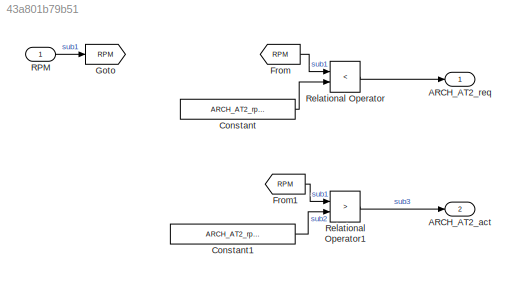
MODEL slx_43a801b79b51
KIND model
CONFIG AbsTol = auto
CONFIG EnableMultiTasking = off
CONFIG FixedStep = fixedStepSize
CONFIG MaxStep = auto
CONFIG MinStep = auto
CONFIG RelTol = 1e-3
CONFIG SampleTimeConstraint = Unconstrained
CONFIG Solver = FixedStepAuto
CONFIG SolverName = FixedStepAuto
CONFIG StartTime = 0.0
CONFIG StopTime = 10.0
BLOCK [Outport] ARCH_AT2_act
  IconDisplay = Port number
  OutDataTypeStr = boolean
  Port = 2
  PortDimensions = 1
  SamplingMode = Sample based
  SignalType = real
  VectorParamsAs1DForOutWhenUnconnected = off
BLOCK [Outport] ARCH_AT2_req
  IconDisplay = Port number
  OutDataTypeStr = boolean
  PortDimensions = 1
  SamplingMode = Sample based
  SignalType = real
  VectorParamsAs1DForOutWhenUnconnected = off
BLOCK [Constant] Constant
  Value = ARCH_AT2_rpmLimit
BLOCK [Constant] Constant1
  Value = ARCH_AT2_rpmLimitAct
BLOCK [From] From
  GotoTag = RPM
BLOCK [From] From1
  GotoTag = RPM
BLOCK [Goto] Goto
  GotoTag = RPM
BLOCK [Inport] RPM
  IconDisplay = Port number
BLOCK [RelationalOperator] Relational Operator
  InputSameDT = off
  Operator = <
  OutDataTypeStr = boolean
  Ports = [2, 1]
  RndMeth = Simplest
BLOCK [RelationalOperator] Relational Operator1
  InputSameDT = off
  Operator = >
  OutDataTypeStr = boolean
  Ports = [2, 1]
  RndMeth = Simplest
LINE Constant1:1 -> Relational Operator1:2
LINE Constant:1 -> Relational Operator:2
LINE From1:1 -> Relational Operator1:1
LINE From:1 -> Relational Operator:1
LINE RPM:1 -> Goto:1
LINE Relational Operator1:1 -> ARCH_AT2_act:1
LINE Relational Operator:1 -> ARCH_AT2_req:1
